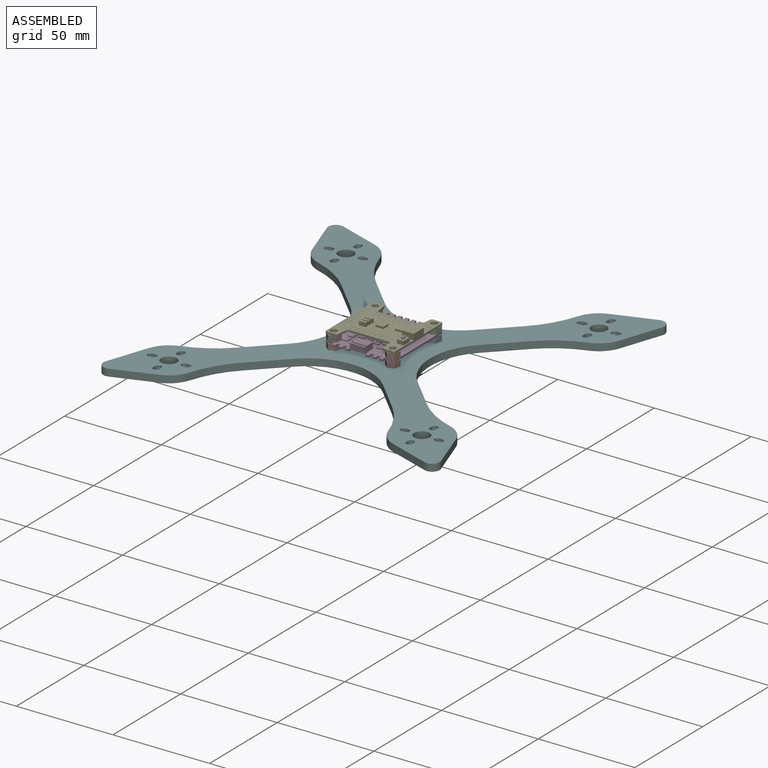
[diagram: assembled view]
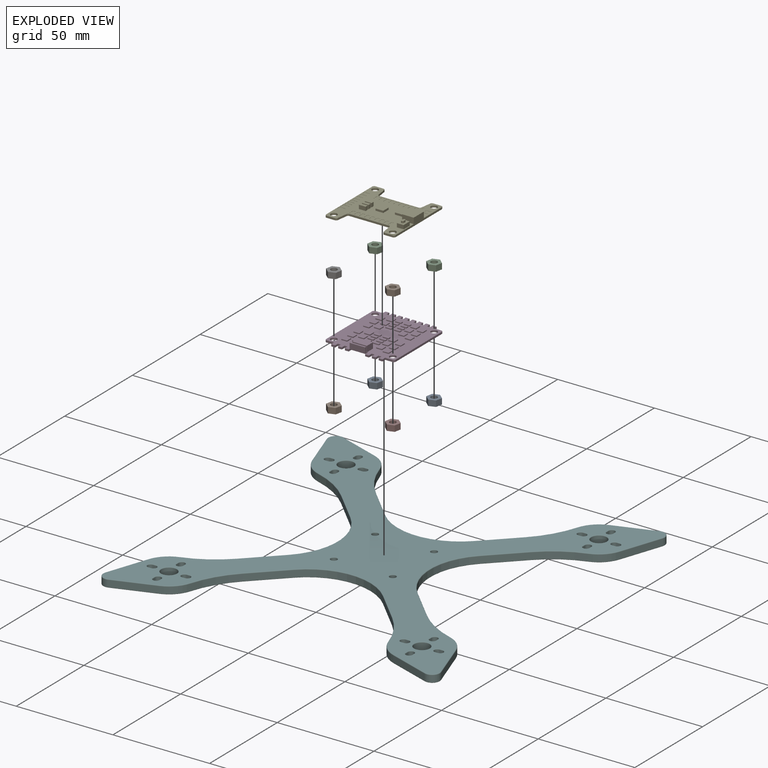
[diagram: exploded view]
GUIDED TOUR — MATED ASSEMBLY (Onshape document e8339020d537f8fa93d6a703, AutoMate assembly e8339020d537f8fa93d6a703_1a3c3acef15f079ed02e62ee_de662026c9102e0390e4941d_default)

This assembly has 11 components, labeled P0..P10 below (a component is one placed occurrence of a part; the same part can appear more than once), held together by 10 mates. A mate is a constraint between two components; its type names the relative motion it leaves free:
  FASTENED — locks the two components together rigidly (no relative motion).
Axis/direction vectors are unit vectors and 'through' points are millimeter coordinates, both in the assembly's world frame.

MATES
  1. FASTENED "Fastened 3": P7 <-> P5, direction (0.000, 0.000, -1.000) through (15.50, -15.32, 1.67) mm
  2. FASTENED "Fastened 1": P9 <-> P5, direction (0.000, 0.000, -1.000) through (-15.00, -15.32, 1.67) mm
  3. FASTENED "Fastened 5": P3 <-> P8, direction (0.000, 0.000, -1.000) through (15.50, 15.18, 4.67) mm
  4. FASTENED "Fastened 2": P0 <-> P5, direction (0.000, 0.000, -1.000) through (-15.00, 15.18, 1.67) mm
  5. FASTENED "Fastened 10": P4 <-> P2, direction (0.000, 0.000, -1.000) through (15.50, 15.18, 8.67) mm
  6. FASTENED "Fastened 8": P2 <-> P3, direction (0.000, 0.000, -1.000) through (15.50, 15.18, 5.67) mm
  7. FASTENED "Fastened 9": P6 <-> P3, direction (0.000, 0.000, -1.000) through (-15.00, -15.32, 5.67) mm
  8. FASTENED "Fastened 4": P8 <-> P5, direction (0.000, 0.000, -1.000) through (15.50, 15.18, 1.67) mm
  9. FASTENED "Fastened 6": P10 <-> P3, direction (0.000, 0.000, -1.000) through (-15.00, 15.18, 5.67) mm
  10. FASTENED "Fastened 7": P1 <-> P3, direction (0.000, 0.000, -1.000) through (15.50, -15.32, 5.67) mm

ASSEMBLY ORDER
  1. P3 — the base component [order verified]
  2. P1 [order verified]
  3. P10 [order verified]
  4. P8 [order verified]
  5. P7 [order verified]
  6. P6 [order verified]
  7. P2 [order verified]
  8. P9 [order verified]
  9. P0 [order verified]
  10. P4 [order verified]
  11. P5 [order verified]
Order-tag legend:
  [order verified] — this step's position reverses a verified removal order: the component was checked to insert without passing through the ones already placed.

Of the 11 components, 1 carries the full construction recipe — the FeatureScript program that regenerates the part's solid from scratch; the rest are supplied as boundary geometry only.
Each toured component is shown spotlighted twice — in the assembled view, then in the exploded view, where a leader line traces a displaced component back to its assembled socket (saturated green if recipe-attached, orange if geometry-only; every other component desaturated gray) — followed by its recipe or geometry summary and the mates that hold it.
NOTE — this tour is split across 2 documents so each fits a 32k-token context. This is document 1: the component sections continue in the remaining 1 document, each repeating the header above.
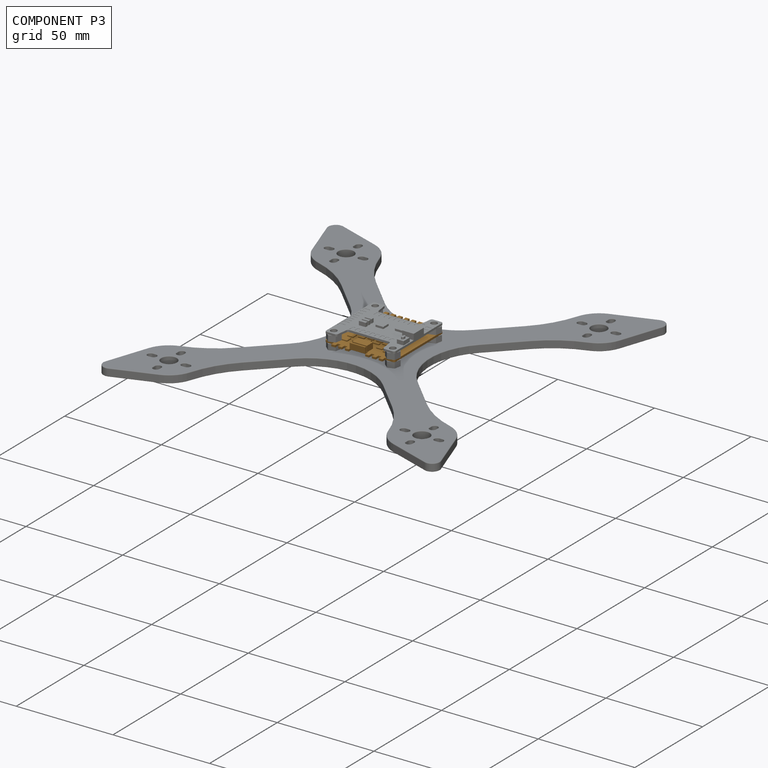
[diagram: component P3 — assembled]
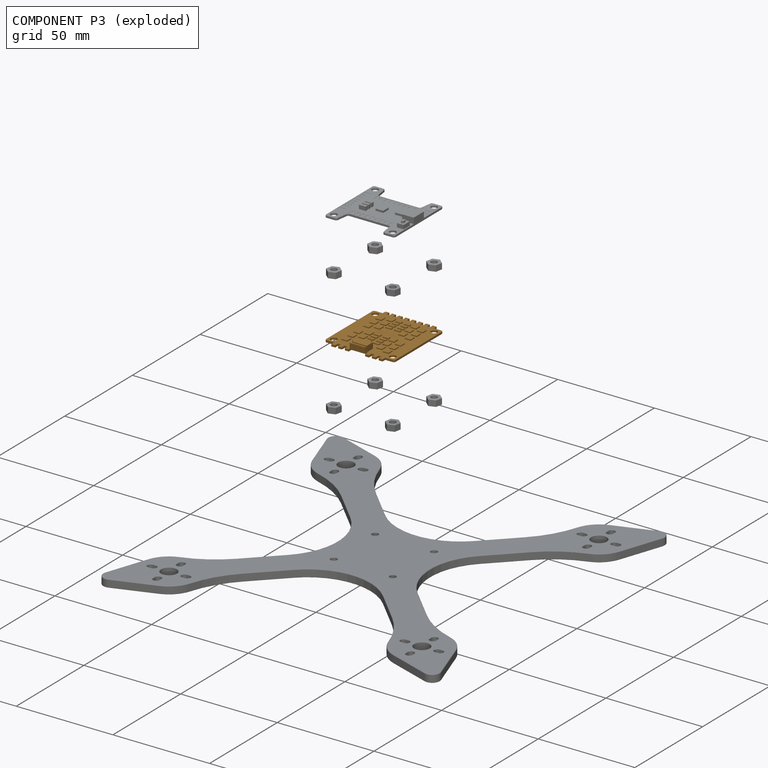
[diagram: component P3 — exploded]
COMPONENT P3 — geometry summary (no construction recipe available for this part):
  bounding box: 40.0 x 36.0 x 4.0 mm
  B-rep topology: 1 solid, 284 faces, 1440 edges
  volume: 1594 mm^3 (28% of its bounding box)
  symmetry: mirror-symmetric across its x mid-plane
Held by: FASTENED mate "Fastened 5" to P8; FASTENED mate "Fastened 8" to P2; FASTENED mate "Fastened 9" to P6; FASTENED mate "Fastened 6" to P10; FASTENED mate "Fastened 7" to P1.
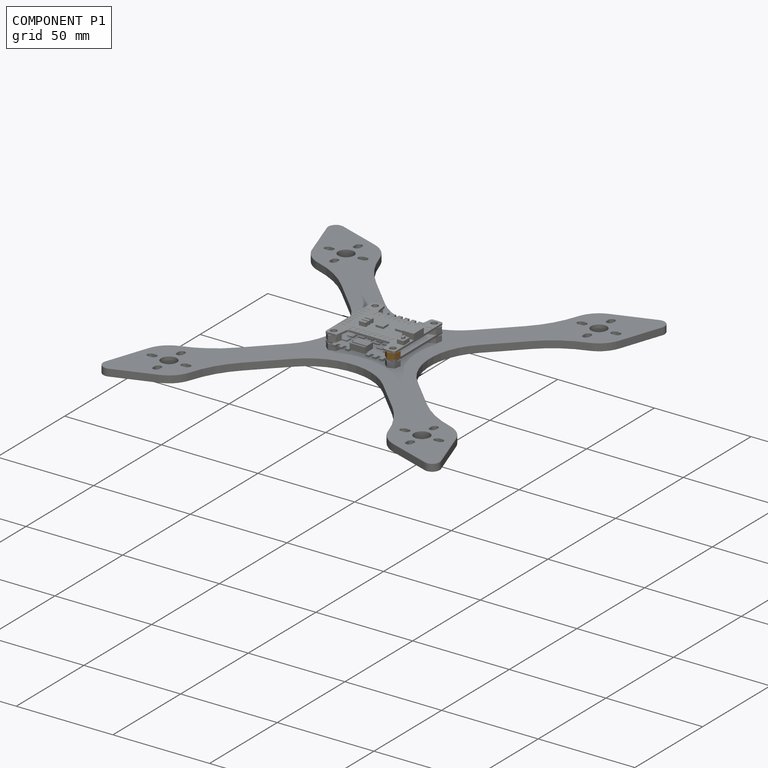
[diagram: component P1 — assembled]
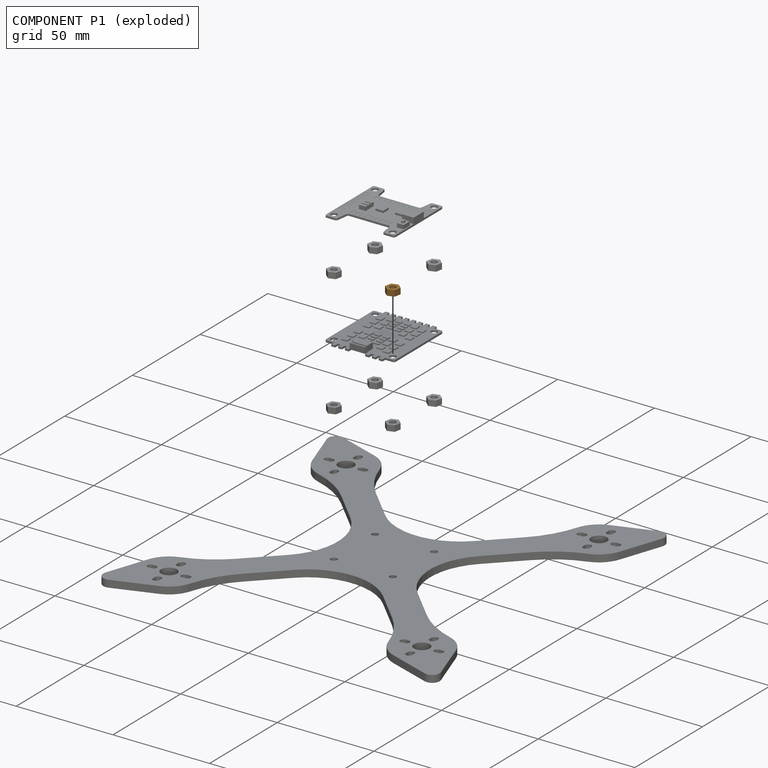
[diagram: component P1 — exploded]
COMPONENT P1 — geometry summary (no construction recipe available for this part):
  bounding box: 6.8 x 6.6 x 3.0 mm
  B-rep topology: 1 solid, 9 faces, 42 edges
  volume: 69 mm^3 (51% of its bounding box)
  symmetry: 6-fold rotationally symmetric about the z axis; mirror-symmetric across its z mid-plane
Held by: FASTENED mate "Fastened 7" to P3.
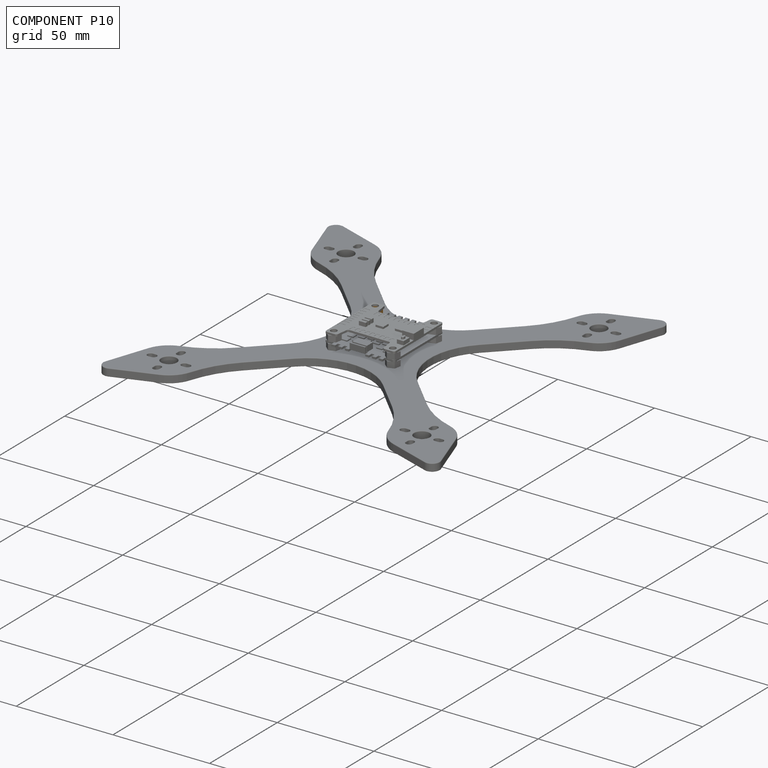
[diagram: component P10 — assembled]
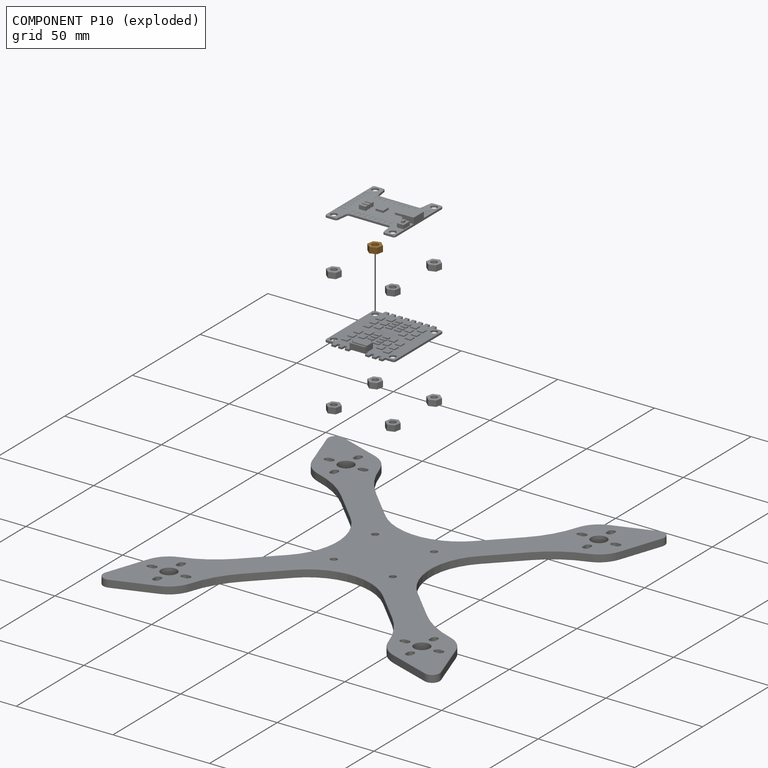
[diagram: component P10 — exploded]
COMPONENT P10 — geometry summary (no construction recipe available for this part):
  bounding box: 6.8 x 6.6 x 3.0 mm
  B-rep topology: 1 solid, 9 faces, 42 edges
  volume: 69 mm^3 (51% of its bounding box)
  symmetry: 6-fold rotationally symmetric about the z axis; mirror-symmetric across its z mid-plane
Held by: FASTENED mate "Fastened 6" to P3.
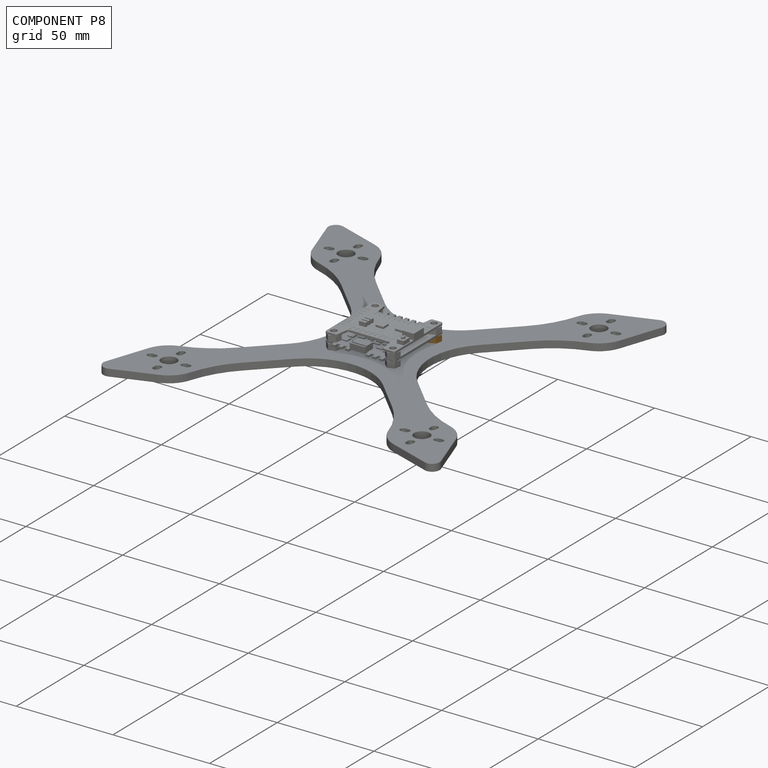
[diagram: component P8 — assembled]
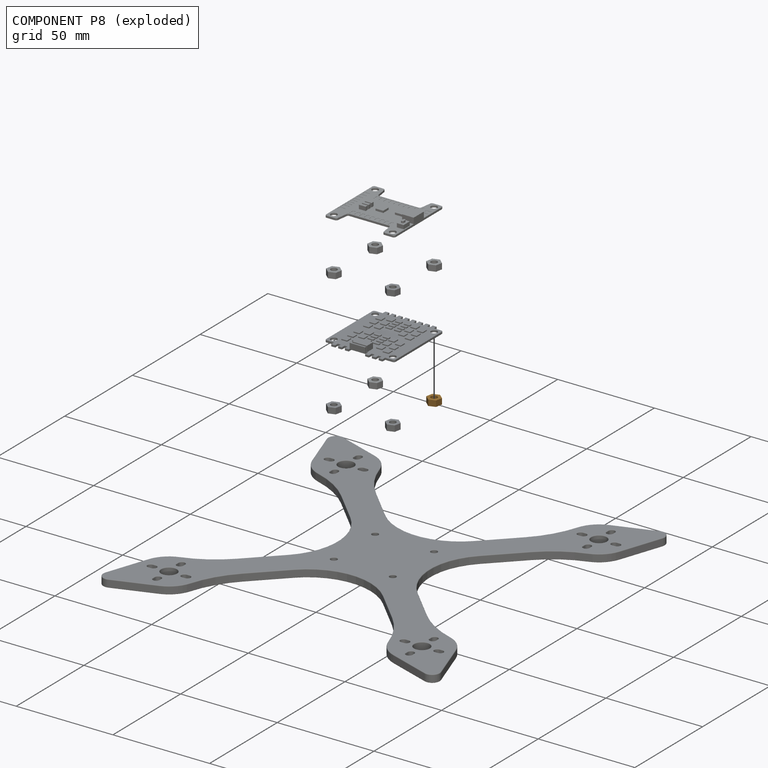
[diagram: component P8 — exploded]
COMPONENT P8 — geometry summary (no construction recipe available for this part):
  bounding box: 6.8 x 6.6 x 3.0 mm
  B-rep topology: 1 solid, 9 faces, 42 edges
  volume: 69 mm^3 (51% of its bounding box)
  symmetry: 6-fold rotationally symmetric about the z axis; mirror-symmetric across its z mid-plane
Held by: FASTENED mate "Fastened 5" to P3; FASTENED mate "Fastened 4" to P5.
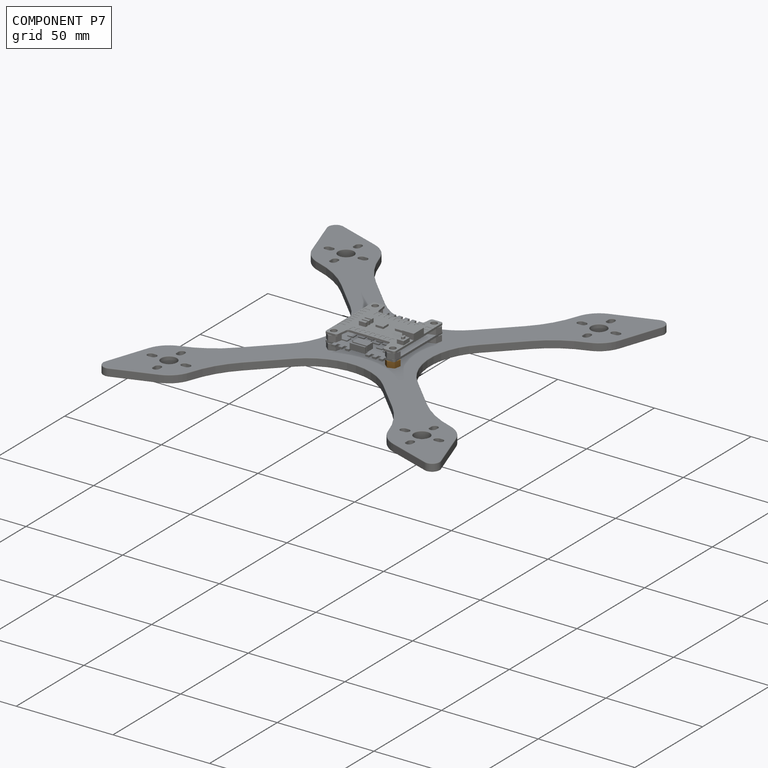
[diagram: component P7 — assembled]
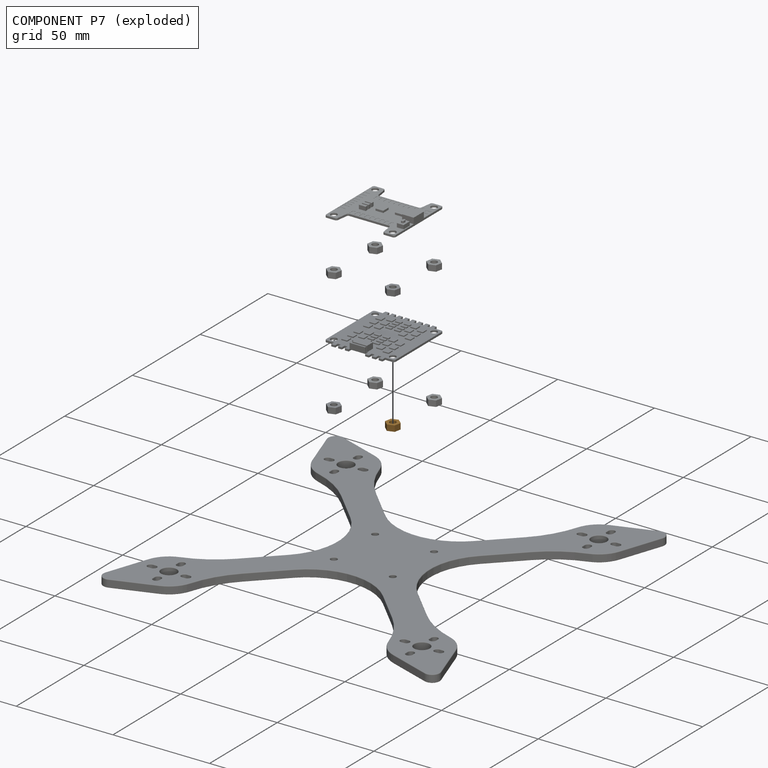
[diagram: component P7 — exploded]
COMPONENT P7 — geometry summary (no construction recipe available for this part):
  bounding box: 6.8 x 6.6 x 3.0 mm
  B-rep topology: 1 solid, 9 faces, 42 edges
  volume: 69 mm^3 (51% of its bounding box)
  symmetry: 6-fold rotationally symmetric about the z axis; mirror-symmetric across its z mid-plane
Held by: FASTENED mate "Fastened 3" to P5.
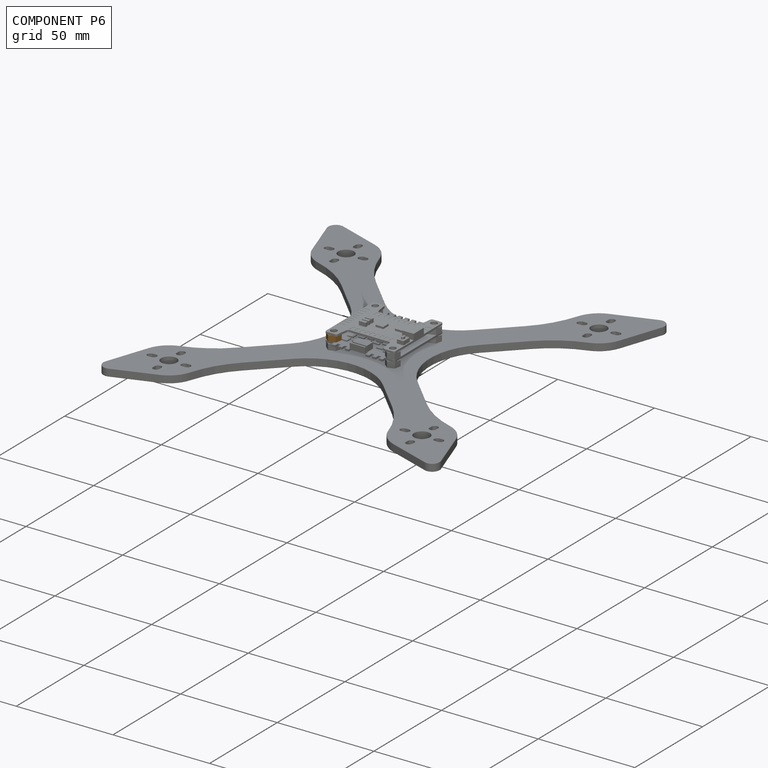
[diagram: component P6 — assembled]
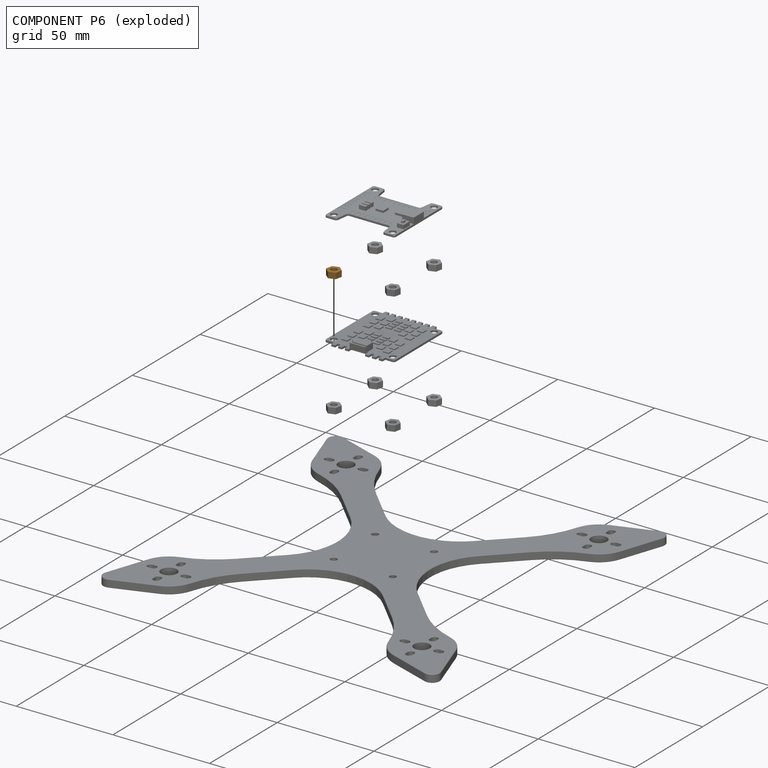
[diagram: component P6 — exploded]
COMPONENT P6 — geometry summary (no construction recipe available for this part):
  bounding box: 6.8 x 6.6 x 3.0 mm
  B-rep topology: 1 solid, 9 faces, 42 edges
  volume: 69 mm^3 (51% of its bounding box)
  symmetry: 6-fold rotationally symmetric about the z axis; mirror-symmetric across its z mid-plane
Held by: FASTENED mate "Fastened 9" to P3.
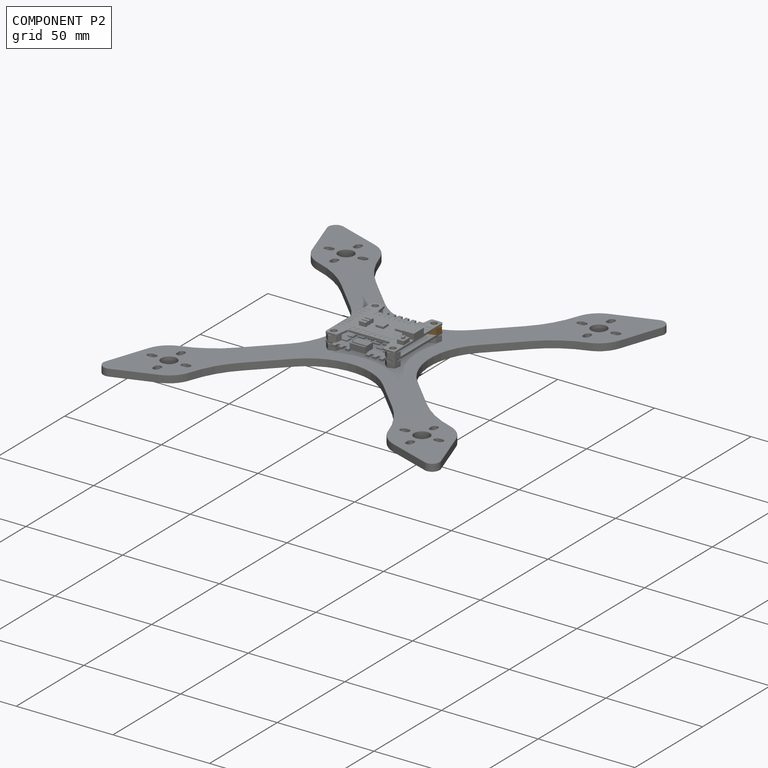
[diagram: component P2 — assembled]
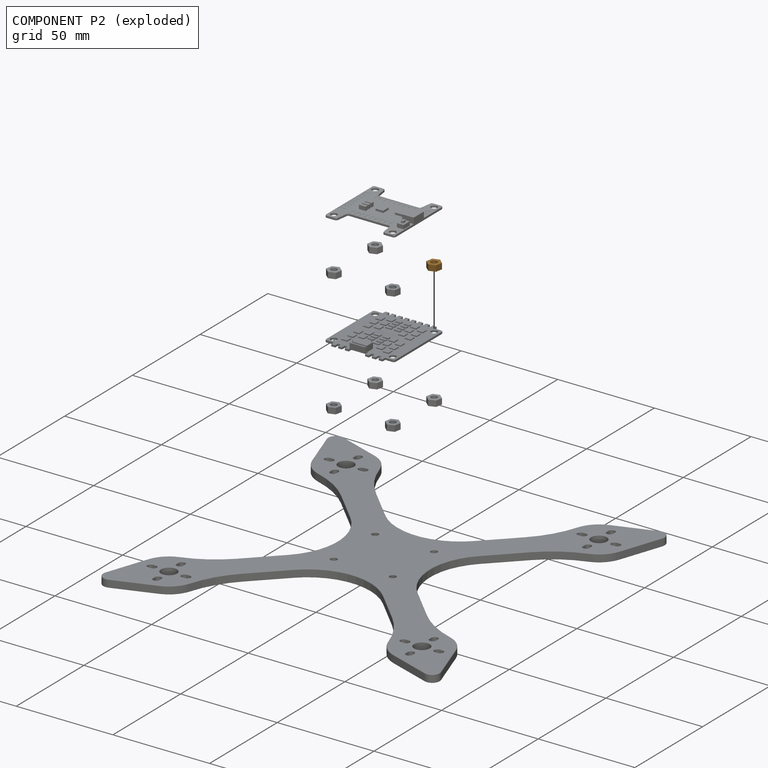
[diagram: component P2 — exploded]
COMPONENT P2 — geometry summary (no construction recipe available for this part):
  bounding box: 6.8 x 6.6 x 3.0 mm
  B-rep topology: 1 solid, 9 faces, 42 edges
  volume: 69 mm^3 (51% of its bounding box)
  symmetry: 6-fold rotationally symmetric about the z axis; mirror-symmetric across its z mid-plane
Held by: FASTENED mate "Fastened 10" to P4; FASTENED mate "Fastened 8" to P3.
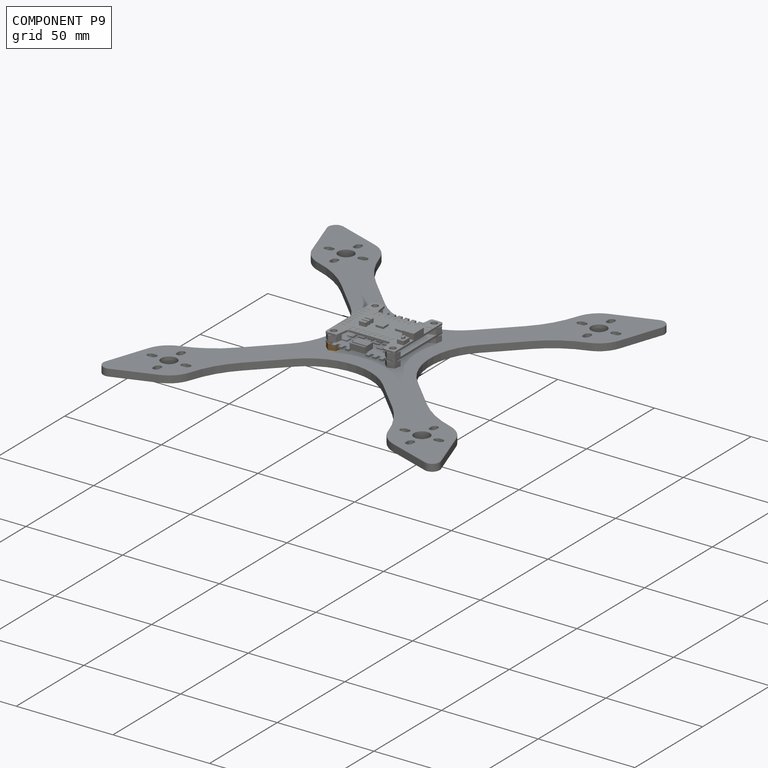
[diagram: component P9 — assembled]
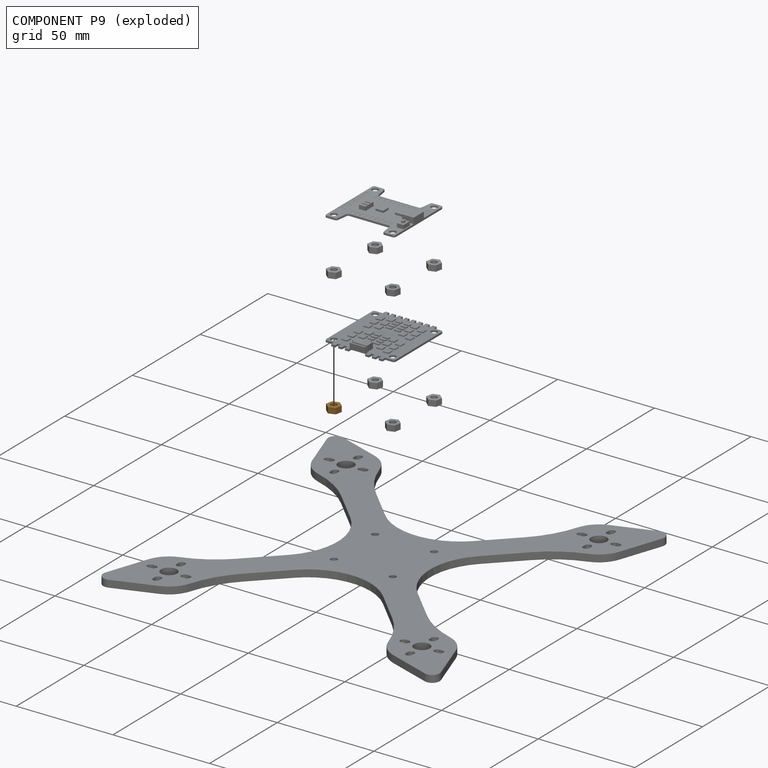
[diagram: component P9 — exploded]
COMPONENT P9 — geometry summary (no construction recipe available for this part):
  bounding box: 6.8 x 6.6 x 3.0 mm
  B-rep topology: 1 solid, 9 faces, 42 edges
  volume: 69 mm^3 (51% of its bounding box)
  symmetry: 6-fold rotationally symmetric about the z axis; mirror-symmetric across its z mid-plane
Held by: FASTENED mate "Fastened 1" to P5.
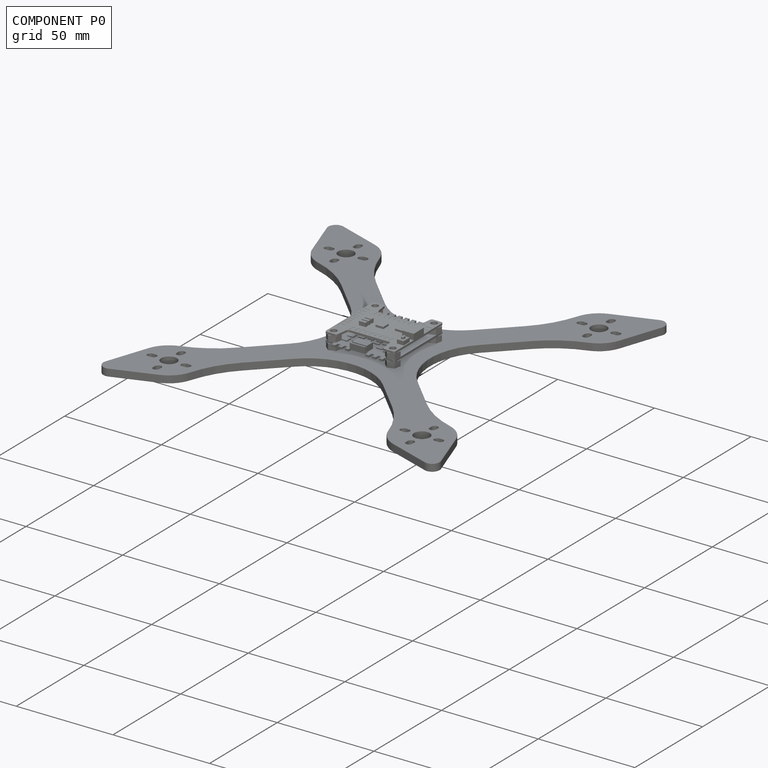
[diagram: component P0 — assembled]
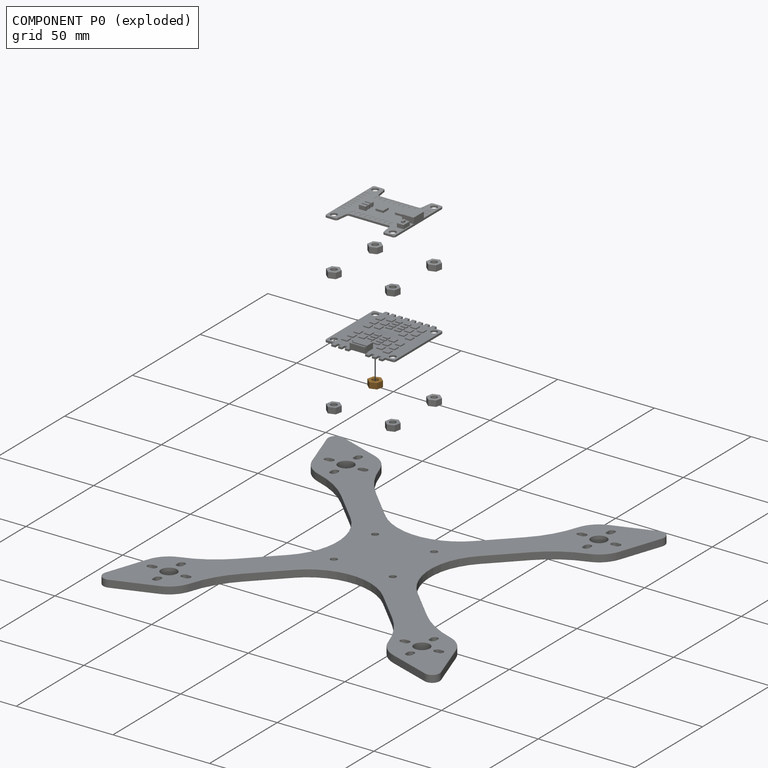
[diagram: component P0 — exploded]
COMPONENT P0 — geometry summary (no construction recipe available for this part):
  bounding box: 6.8 x 6.6 x 3.0 mm
  B-rep topology: 1 solid, 9 faces, 42 edges
  volume: 69 mm^3 (51% of its bounding box)
  symmetry: 6-fold rotationally symmetric about the z axis; mirror-symmetric across its z mid-plane
Held by: FASTENED mate "Fastened 2" to P5.
